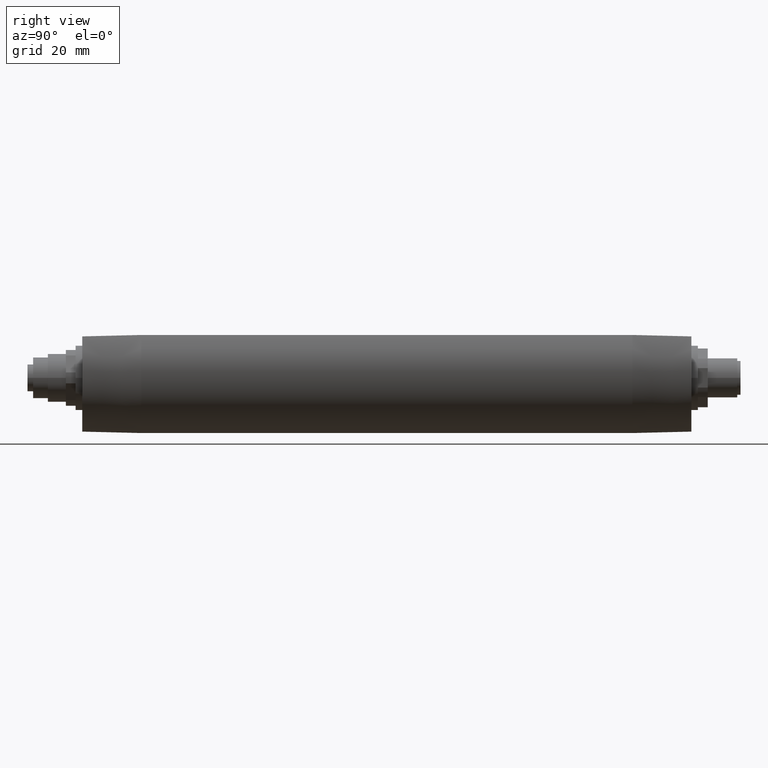
[diagram: clean part render]
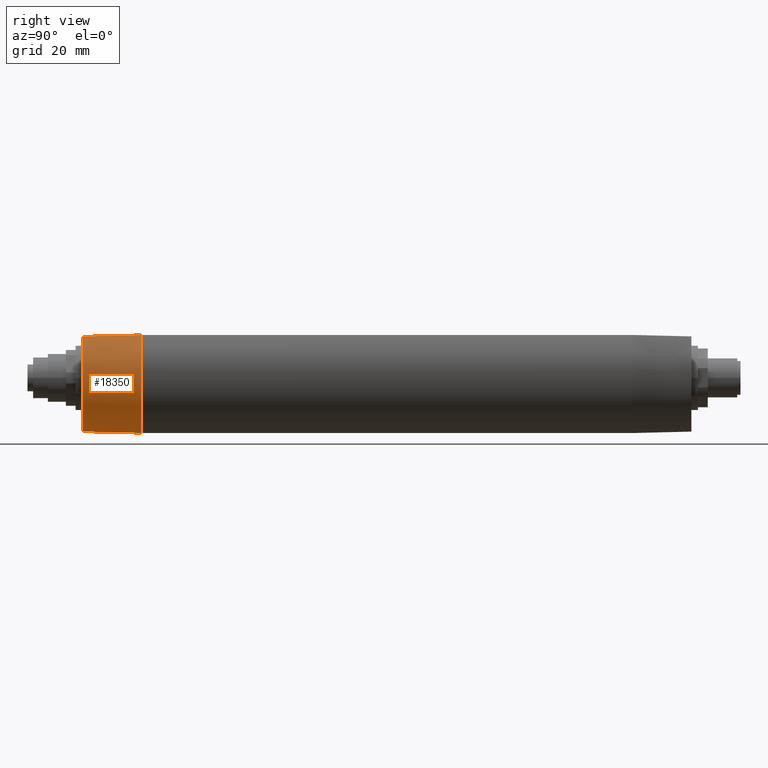
[diagram: same view with one face highlighted and labeled with its STEP entity id]
A machine part, right view. The second image highlights one B-rep face of the part: STEP entity #18350.
In plain terms, the highlighted conical surface has half-angle 1.4 deg.
Its self-contained STEP definition (entity closure, byte-faithful):
#15210=CARTESIAN_POINT('',(6.95970545353752,-18.75,75.));
#15220=VERTEX_POINT('',#15210);
#15560=CARTESIAN_POINT('',(-5.39975551799169E-14,-1.12440856692483E-13,
75.0000000000269));
#15570=DIRECTION('',(1.23496678478392E-15,3.81502863814771E-15,1.));
#15580=DIRECTION('',(1.,-4.71143365111188E-30,-1.23496678478392E-15));
#15590=AXIS2_PLACEMENT_3D('',#15560,#15570,#15580);
#15600=CIRCLE('',#15590,19.9999999999997);
#15610=CARTESIAN_POINT('',(16.5698521417664,11.2,75.));
#15620=VERTEX_POINT('',#15610);
#15630=EDGE_CURVE('',#15220,#15620,#15600,.T.);
#17830=CARTESIAN_POINT('',(16.5698521417709,11.1999999999984,75.));
#17840=CARTESIAN_POINT('',(16.4919754200487,11.0533629813368,
81.0000072485205));
#17850=CARTESIAN_POINT('',(16.4135499125743,10.9067261359859,
87.0000074056804));
#17860=CARTESIAN_POINT('',(16.3345515631188,10.7600894754653,
93.0000000000009));
#17870=B_SPLINE_CURVE_WITH_KNOTS('',3,(#17830,#17840,#17850,#17860),
.UNSPECIFIED.,.F.,.F.,(4,4),(0.,18.0069122705595),.UNSPECIFIED.);
#17880=CARTESIAN_POINT('',(16.3345515631189,10.7600894754653,93.));
#17890=VERTEX_POINT('',#17880);
#17900=EDGE_CURVE('',#15620,#17890,#17870,.T.);
#18100=CARTESIAN_POINT('',(-6.46996610715977E-14,-2.24768708743919E-13,
74.5491896177198));
#18110=DIRECTION('',(-2.46993356956785E-15,-7.63005727629543E-15,-1.));
#18120=DIRECTION('',(0.,-1.,7.63005727629543E-15));
#18130=AXIS2_PLACEMENT_3D('',#18100,#18110,#18120);
#18140=CONICAL_SURFACE('',#18130,20.0110175684297,0.0244346095279202);
#18150=CARTESIAN_POINT('',(6.88024154290164,-18.3100894754652,
93.0000000000017));
#18160=CARTESIAN_POINT('',(6.90688247259439,-18.4567263004359,
87.0000006768112));
#18170=CARTESIAN_POINT('',(6.93336869640987,-18.6033631422299,
81.0000006652528));
#18180=CARTESIAN_POINT('',(6.95970545353793,-18.7499999999999,
75.0000000000006));
#18190=B_SPLINE_CURVE_WITH_KNOTS('',3,(#18150,#18160,#18170,#18180),
.UNSPECIFIED.,.F.,.F.,(4,4),(0.,18.0055501421513),.UNSPECIFIED.);
#18200=CARTESIAN_POINT('',(6.88024154290118,-18.3100894754653,93.));
#18210=VERTEX_POINT('',#18200);
#18220=EDGE_CURVE('',#18210,#15220,#18190,.T.);
#18230=ORIENTED_EDGE('',*,*,#18220,.T.);
#18240=CARTESIAN_POINT('',(-1.91273851226735E-14,-8.39879687330563E-14,
92.9999999999997));
#18250=DIRECTION('',(2.46993356956785E-15,7.63005727629543E-15,1.));
#18260=DIRECTION('',(0.,-1.,7.63005727629543E-15));
#18270=AXIS2_PLACEMENT_3D('',#18240,#18250,#18260);
#18280=CIRCLE('',#18270,19.5600894754653);
#18290=EDGE_CURVE('',#18210,#17890,#18280,.T.);
#18300=ORIENTED_EDGE('',*,*,#18290,.F.);
#18310=ORIENTED_EDGE('',*,*,#17900,.T.);
#18320=ORIENTED_EDGE('',*,*,#15630,.T.);
#18330=EDGE_LOOP('',(#18320,#18310,#18300,#18230));
#18340=FACE_OUTER_BOUND('',#18330,.T.);
#18350=ADVANCED_FACE('',(#18340),#18140,.T.);